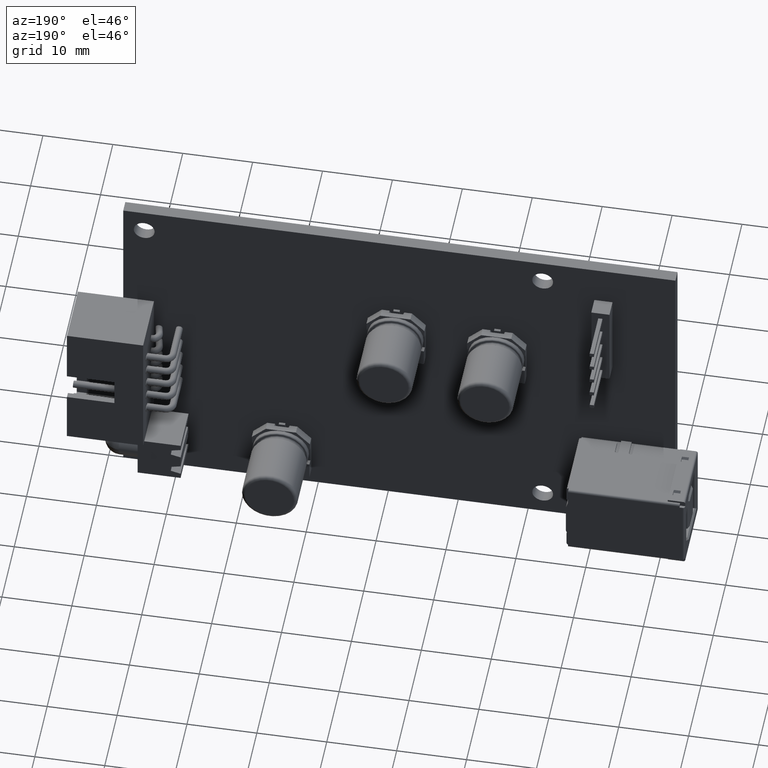
[diagram: clean part render]
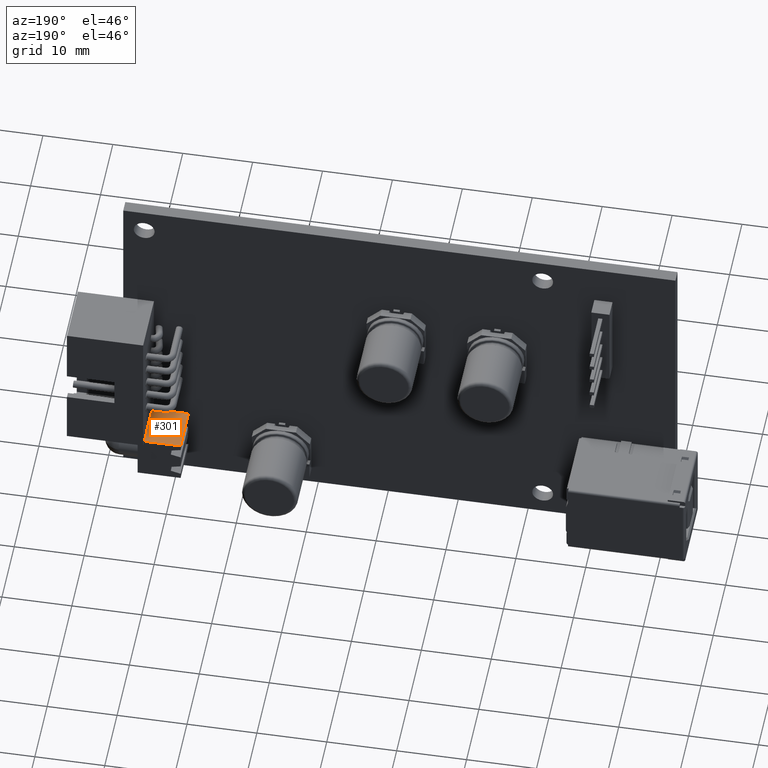
[diagram: same view with one face highlighted and labeled with its STEP entity id]
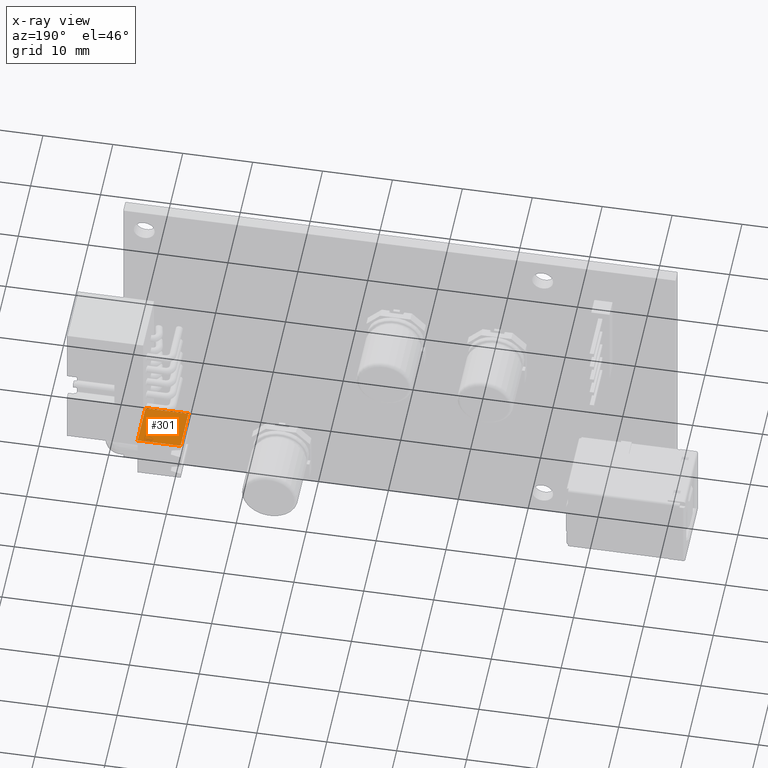
[diagram: x-ray of the same camera — body ghosted, the highlighted face saturated]
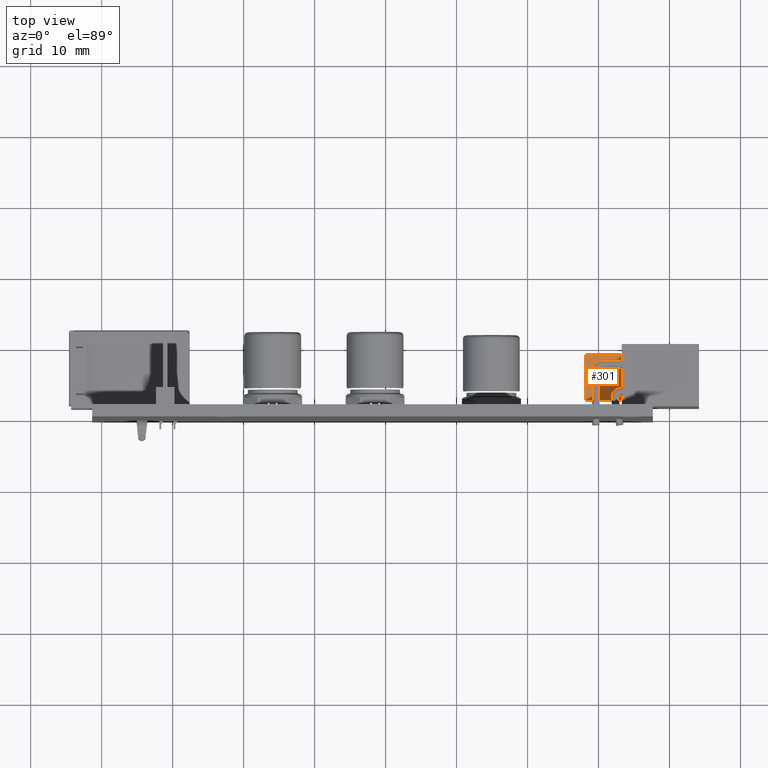
[diagram: same view with one face highlighted and labeled with its STEP entity id]
A machine part, auxiliary view. The second image highlights one B-rep face of the part: STEP entity #301.
The next image is the same camera in x-ray: the body ghosted, the highlighted face saturated — about 0% of this face is hidden behind the body in this view.
A second angle (top view) of the same face is appended — the face is thin or edge-on in the first view.
In plain terms, the highlighted planar face has unit normal (0, 0, -1).
Its self-contained STEP definition (entity closure, byte-faithful):
#254 = VERTEX_POINT ( 'NONE', #2611 ) ;
#301 = ADVANCED_FACE ( 'NONE', ( #4612 ), #5215, .F. ) ;
#475 = VECTOR ( 'NONE', #14541, 1000.000000000000000 ) ;
#509 = CARTESIAN_POINT ( 'NONE',  ( 34.26324033284386400, 2.726700930004712500, -38.25000000001047300 ) ) ;
#1353 = DIRECTION ( 'NONE',  ( 1.355252715606880500E-016, -1.000000000000000000, 0.0000000000000000000 ) ) ;
#2611 = CARTESIAN_POINT ( 'NONE',  ( 34.26324033284386400, 2.726700930004712500, -38.25000000001047300 ) ) ;
#2615 = VECTOR ( 'NONE', #12048, 1000.000000000000000 ) ;
#2977 = EDGE_LOOP ( 'NONE', ( #14959, #8955, #7267, #8650 ) ) ;
#3127 = LINE ( 'NONE', #10484, #12314 ) ;
#3529 = CARTESIAN_POINT ( 'NONE',  ( 34.26324033284385700, 9.126700930004712800, -38.25000000001048100 ) ) ;
#4301 = CARTESIAN_POINT ( 'NONE',  ( 28.11324033284385800, 9.126700930004711100, -38.25000000001048100 ) ) ;
#4612 = FACE_OUTER_BOUND ( 'NONE', #2977, .T. ) ;
#5024 = LINE ( 'NONE', #4301, #475 ) ;
#5215 = PLANE ( 'NONE',  #10564 ) ;
#6236 = CARTESIAN_POINT ( 'NONE',  ( 34.26324033284385700, 9.126700930004712800, -38.25000000001048100 ) ) ;
#6287 = DIRECTION ( 'NONE',  ( -1.000000000000000000, -1.355252715606880500E-016, -0.0000000000000000000 ) ) ;
#6288 = CARTESIAN_POINT ( 'NONE',  ( 34.26324033284385700, 9.126700930004712800, -38.25000000001048100 ) ) ;
#7016 = LINE ( 'NONE', #509, #2615 ) ;
#7168 = EDGE_CURVE ( 'NONE', #254, #8014, #7016, .T. ) ;
#7267 = ORIENTED_EDGE ( 'NONE', *, *, #10394, .F. ) ;
#7307 = VERTEX_POINT ( 'NONE', #3529 ) ;
#8014 = VERTEX_POINT ( 'NONE', #14848 ) ;
#8352 = EDGE_CURVE ( 'NONE', #7307, #10990, #15724, .T. ) ;
#8650 = ORIENTED_EDGE ( 'NONE', *, *, #8352, .T. ) ;
#8955 = ORIENTED_EDGE ( 'NONE', *, *, #7168, .F. ) ;
#10394 = EDGE_CURVE ( 'NONE', #7307, #254, #3127, .T. ) ;
#10484 = CARTESIAN_POINT ( 'NONE',  ( 34.26324033284385700, 9.126700930004712800, -38.25000000001048100 ) ) ;
#10564 = AXIS2_PLACEMENT_3D ( 'NONE', #6288, #12798, #15239 ) ;
#10990 = VERTEX_POINT ( 'NONE', #14248 ) ;
#11588 = VECTOR ( 'NONE', #6287, 1000.000000000000000 ) ;
#12048 = DIRECTION ( 'NONE',  ( -1.000000000000000000, -1.355252715606880500E-016, -0.0000000000000000000 ) ) ;
#12314 = VECTOR ( 'NONE', #1353, 1000.000000000000000 ) ;
#12798 = DIRECTION ( 'NONE',  ( 0.0000000000000000000, 0.0000000000000000000, -1.000000000000000000 ) ) ;
#14248 = CARTESIAN_POINT ( 'NONE',  ( 28.11324033284385800, 9.126700930004711100, -38.25000000001048100 ) ) ;
#14541 = DIRECTION ( 'NONE',  ( 1.355252715606880500E-016, -1.000000000000000000, 0.0000000000000000000 ) ) ;
#14848 = CARTESIAN_POINT ( 'NONE',  ( 28.11324033284386200, 2.726700930004711600, -38.25000000001047300 ) ) ;
#14959 = ORIENTED_EDGE ( 'NONE', *, *, #16215, .T. ) ;
#15239 = DIRECTION ( 'NONE',  ( -1.355252715606880500E-016, 1.000000000000000000, 0.0000000000000000000 ) ) ;
#15724 = LINE ( 'NONE', #6236, #11588 ) ;
#16215 = EDGE_CURVE ( 'NONE', #10990, #8014, #5024, .T. ) ;